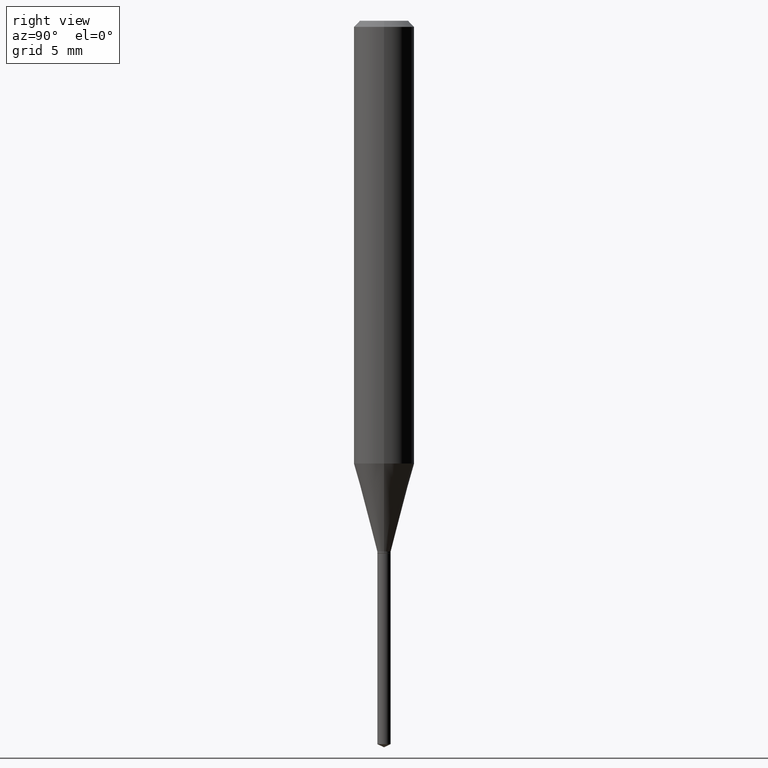
[diagram: clean part render]
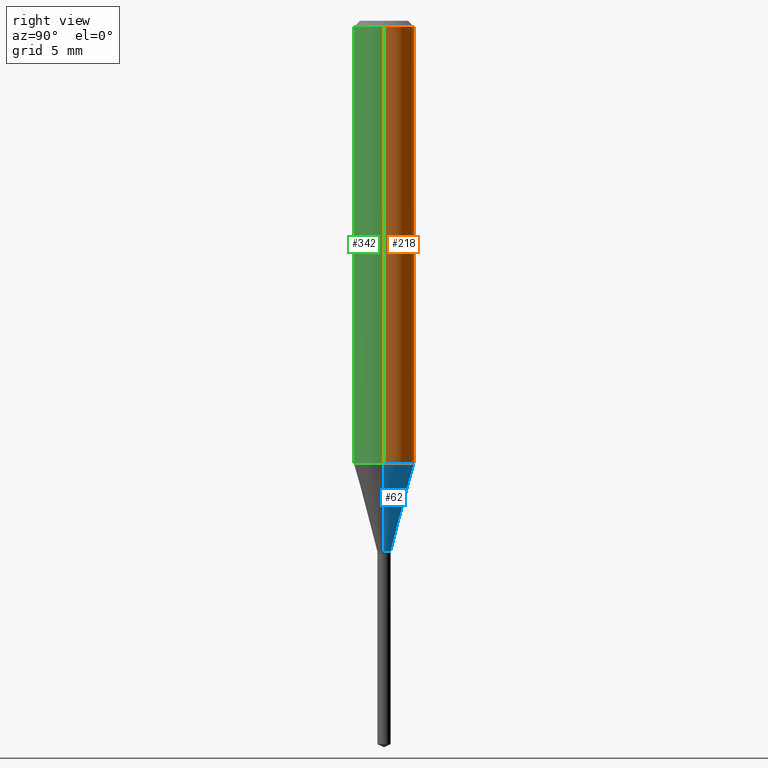
[diagram: same view with three faces highlighted in distinct colors, each labeled with its STEP entity id]
A machine part, right view with three faces highlighted in distinct colors.
Their STEP definitions:

[orange] entity #218 — the highlighted cylindrical surface (edge-blend (fillet) strip) has radius 1.5875 mm, axis along (-0, 0, 1).
#31 = VERTEX_POINT ( 'NONE', #334 ) ;
#35 = CIRCLE ( 'NONE', #430, 0.06250000000000000000 ) ;
#36 = CARTESIAN_POINT ( 'NONE',  ( -0.06250000000000005551, 4.440892098500630106E-16, -3.074334431409318916E-30 ) ) ;
#43 = DIRECTION ( 'NONE',  ( -2.445468806185136877E-29, 3.491481338843145188E-15, 1.000000000000000000 ) ) ;
#60 = VERTEX_POINT ( 'NONE', #359 ) ;
#68 = ORIENTED_EDGE ( 'NONE', *, *, #444, .T. ) ;
#77 = ORIENTED_EDGE ( 'NONE', *, *, #122, .F. ) ;
#89 = ORIENTED_EDGE ( 'NONE', *, *, #327, .F. ) ;
#90 = CARTESIAN_POINT ( 'NONE',  ( 0.06250000000000005551, -4.364351673553921131E-16, 3.047610484872463023E-30 ) ) ;
#113 = CARTESIAN_POINT ( 'NONE',  ( 3.056836007731440977E-31, -4.364351673553961068E-17, -0.01250000000000008223 ) ) ;
#115 = CARTESIAN_POINT ( 'NONE',  ( 0.000000000000000000, 0.000000000000000000, 0.000000000000000000 ) ) ;
#122 = EDGE_CURVE ( 'NONE', #31, #60, #35, .T. ) ;
#123 = EDGE_CURVE ( 'NONE', #387, #60, #156, .T. ) ;
#137 = VECTOR ( 'NONE', #43, 39.37007874015748143 ) ;
#141 = CARTESIAN_POINT ( 'NONE',  ( 2.235523171030814691E-29, -3.191734613201455764E-15, -0.9141491256713957236 ) ) ;
#149 = VERTEX_POINT ( 'NONE', #346 ) ;
#156 = LINE ( 'NONE', #36, #137 ) ;
#218 = ADVANCED_FACE ( 'NONE', ( #463 ), #303, .T. ) ;
#271 = DIRECTION ( 'NONE',  ( 1.000000000000000000, -6.982962677686267499E-15, 4.876176775795936353E-29 ) ) ;
#303 = CYLINDRICAL_SURFACE ( 'NONE', #304, 0.06250000000000005551 ) ;
#304 = AXIS2_PLACEMENT_3D ( 'NONE', #115, #459, #271 ) ;
#313 = DIRECTION ( 'NONE',  ( 1.000000000000000000, -6.982962677686266711E-15, 0.000000000000000000 ) ) ;
#327 = EDGE_CURVE ( 'NONE', #149, #31, #431, .T. ) ;
#328 = CIRCLE ( 'NONE', #438, 0.06250000000000012490 ) ;
#333 = CARTESIAN_POINT ( 'NONE',  ( -0.06250000000000012490, -2.747645403351391964E-15, -0.9141491256713957236 ) ) ;
#334 = CARTESIAN_POINT ( 'NONE',  ( 0.06250000000000000000, -4.800786840909312308E-16, -0.01250000000000008223 ) ) ;
#336 = DIRECTION ( 'NONE',  ( 1.000000000000000000, -6.982962677686264344E-15, 0.000000000000000000 ) ) ;
#343 = DIRECTION ( 'NONE',  ( -2.445468806185136597E-29, 3.491481338843145583E-15, 1.000000000000000000 ) ) ;
#346 = CARTESIAN_POINT ( 'NONE',  ( 0.06250000000000012490, -3.628169780556848222E-15, -0.9141491256713957236 ) ) ;
#359 = CARTESIAN_POINT ( 'NONE',  ( -0.06250000000000000000, -1.173599855118433863E-15, -0.01250000000000008223 ) ) ;
#368 = VECTOR ( 'NONE', #433, 39.37007874015748143 ) ;
#375 = EDGE_LOOP ( 'NONE', ( #68, #379, #77, #89 ) ) ;
#379 = ORIENTED_EDGE ( 'NONE', *, *, #123, .T. ) ;
#387 = VERTEX_POINT ( 'NONE', #333 ) ;
#430 = AXIS2_PLACEMENT_3D ( 'NONE', #113, #343, #313 ) ;
#431 = LINE ( 'NONE', #90, #368 ) ;
#433 = DIRECTION ( 'NONE',  ( -2.445468806185136877E-29, 3.491481338843145188E-15, 1.000000000000000000 ) ) ;
#438 = AXIS2_PLACEMENT_3D ( 'NONE', #141, #453, #336 ) ;
#444 = EDGE_CURVE ( 'NONE', #149, #387, #328, .T. ) ;
#453 = DIRECTION ( 'NONE',  ( -2.445468806185136597E-29, 3.491481338843145583E-15, 1.000000000000000000 ) ) ;
#459 = DIRECTION ( 'NONE',  ( -2.445468806185136597E-29, 3.491481338843145583E-15, 1.000000000000000000 ) ) ;
#463 = FACE_OUTER_BOUND ( 'NONE', #375, .T. ) ;

[blue] entity #62 — the highlighted conical surface has half-angle 15 deg.
#8 = LINE ( 'NONE', #388, #26 ) ;
#12 = CONICAL_SURFACE ( 'NONE', #213, 0.01379999999999999977, 0.2617993877991499074 ) ;
#25 = ORIENTED_EDGE ( 'NONE', *, *, #279, .T. ) ;
#26 = VECTOR ( 'NONE', #474, 39.37007874015748854 ) ;
#32 = DIRECTION ( 'NONE',  ( 0.2588190451025211836, 1.565188264969622559E-15, 0.9659258262890679791 ) ) ;
#34 = EDGE_LOOP ( 'NONE', ( #158, #25, #98, #189 ) ) ;
#39 = DIRECTION ( 'NONE',  ( 1.000000000000000000, -6.982962677686269866E-15, 0.000000000000000000 ) ) ;
#50 = CIRCLE ( 'NONE', #190, 0.01379999999999999977 ) ;
#62 = ADVANCED_FACE ( 'NONE', ( #398 ), #12, .T. ) ;
#98 = ORIENTED_EDGE ( 'NONE', *, *, #444, .F. ) ;
#132 = CARTESIAN_POINT ( 'NONE',  ( 2.679989264698291414E-29, -3.826314399238203772E-15, -1.095900000000000096 ) ) ;
#140 = VERTEX_POINT ( 'NONE', #490 ) ;
#141 = CARTESIAN_POINT ( 'NONE',  ( 2.235523171030814691E-29, -3.191734613201455764E-15, -0.9141491256713957236 ) ) ;
#149 = VERTEX_POINT ( 'NONE', #346 ) ;
#158 = ORIENTED_EDGE ( 'NONE', *, *, #207, .T. ) ;
#184 = CARTESIAN_POINT ( 'NONE',  ( 0.01379999999999999977, -3.922679284190274713E-15, -1.095900000000000096 ) ) ;
#189 = ORIENTED_EDGE ( 'NONE', *, *, #362, .F. ) ;
#190 = AXIS2_PLACEMENT_3D ( 'NONE', #349, #380, #39 ) ;
#194 = VECTOR ( 'NONE', #32, 39.37007874015748854 ) ;
#207 = EDGE_CURVE ( 'NONE', #140, #410, #50, .T. ) ;
#213 = AXIS2_PLACEMENT_3D ( 'NONE', #132, #350, #231 ) ;
#215 = CARTESIAN_POINT ( 'NONE',  ( -0.01379999999999999977, -3.734544168113227903E-15, -1.095900000000000096 ) ) ;
#231 = DIRECTION ( 'NONE',  ( 1.000000000000000000, -6.982962677686269866E-15, 0.000000000000000000 ) ) ;
#279 = EDGE_CURVE ( 'NONE', #410, #387, #8, .T. ) ;
#328 = CIRCLE ( 'NONE', #438, 0.06250000000000012490 ) ;
#333 = CARTESIAN_POINT ( 'NONE',  ( -0.06250000000000012490, -2.747645403351391964E-15, -0.9141491256713957236 ) ) ;
#336 = DIRECTION ( 'NONE',  ( 1.000000000000000000, -6.982962677686264344E-15, 0.000000000000000000 ) ) ;
#346 = CARTESIAN_POINT ( 'NONE',  ( 0.06250000000000012490, -3.628169780556848222E-15, -0.9141491256713957236 ) ) ;
#349 = CARTESIAN_POINT ( 'NONE',  ( 2.679989264698291414E-29, -3.826314399238203772E-15, -1.095900000000000096 ) ) ;
#350 = DIRECTION ( 'NONE',  ( -2.445468806185136597E-29, 3.491481338843145583E-15, 1.000000000000000000 ) ) ;
#362 = EDGE_CURVE ( 'NONE', #140, #149, #442, .T. ) ;
#380 = DIRECTION ( 'NONE',  ( -2.445468806185136597E-29, 3.491481338843145583E-15, 1.000000000000000000 ) ) ;
#387 = VERTEX_POINT ( 'NONE', #333 ) ;
#388 = CARTESIAN_POINT ( 'NONE',  ( -0.01379999999999999977, -3.728259501703309702E-15, -1.095900000000000096 ) ) ;
#398 = FACE_OUTER_BOUND ( 'NONE', #34, .T. ) ;
#410 = VERTEX_POINT ( 'NONE', #215 ) ;
#438 = AXIS2_PLACEMENT_3D ( 'NONE', #141, #453, #336 ) ;
#442 = LINE ( 'NONE', #184, #194 ) ;
#444 = EDGE_CURVE ( 'NONE', #149, #387, #328, .T. ) ;
#453 = DIRECTION ( 'NONE',  ( -2.445468806185136597E-29, 3.491481338843145583E-15, 1.000000000000000000 ) ) ;
#474 = DIRECTION ( 'NONE',  ( -0.2588190451025211836, 5.211531920934547886E-15, 0.9659258262890679791 ) ) ;
#490 = CARTESIAN_POINT ( 'NONE',  ( 0.01379999999999999977, -3.922679284190274713E-15, -1.095900000000000096 ) ) ;

[green] entity #342 — the highlighted cylindrical surface (edge-blend (fillet) strip) has radius 1.5875 mm, axis along (-0, 0, 1).
#29 = DIRECTION ( 'NONE',  ( 1.000000000000000000, -6.982962677686266711E-15, 0.000000000000000000 ) ) ;
#31 = VERTEX_POINT ( 'NONE', #334 ) ;
#36 = CARTESIAN_POINT ( 'NONE',  ( -0.06250000000000005551, 4.440892098500630106E-16, -3.074334431409318916E-30 ) ) ;
#43 = DIRECTION ( 'NONE',  ( -2.445468806185136877E-29, 3.491481338843145188E-15, 1.000000000000000000 ) ) ;
#58 = EDGE_CURVE ( 'NONE', #387, #149, #401, .T. ) ;
#60 = VERTEX_POINT ( 'NONE', #359 ) ;
#67 = AXIS2_PLACEMENT_3D ( 'NONE', #260, #406, #29 ) ;
#90 = CARTESIAN_POINT ( 'NONE',  ( 0.06250000000000005551, -4.364351673553921131E-16, 3.047610484872463023E-30 ) ) ;
#92 = FACE_OUTER_BOUND ( 'NONE', #196, .T. ) ;
#94 = ORIENTED_EDGE ( 'NONE', *, *, #123, .F. ) ;
#103 = DIRECTION ( 'NONE',  ( 1.000000000000000000, -6.982962677686264344E-15, 0.000000000000000000 ) ) ;
#114 = ORIENTED_EDGE ( 'NONE', *, *, #327, .T. ) ;
#123 = EDGE_CURVE ( 'NONE', #387, #60, #156, .T. ) ;
#137 = VECTOR ( 'NONE', #43, 39.37007874015748143 ) ;
#149 = VERTEX_POINT ( 'NONE', #346 ) ;
#156 = LINE ( 'NONE', #36, #137 ) ;
#196 = EDGE_LOOP ( 'NONE', ( #94, #199, #114, #292 ) ) ;
#199 = ORIENTED_EDGE ( 'NONE', *, *, #58, .T. ) ;
#260 = CARTESIAN_POINT ( 'NONE',  ( 3.056836007731440977E-31, -4.364351673553961068E-17, -0.01250000000000008223 ) ) ;
#278 = AXIS2_PLACEMENT_3D ( 'NONE', #367, #488, #289 ) ;
#289 = DIRECTION ( 'NONE',  ( 1.000000000000000000, -6.982962677686267499E-15, 4.876176775795936353E-29 ) ) ;
#292 = ORIENTED_EDGE ( 'NONE', *, *, #344, .F. ) ;
#322 = CIRCLE ( 'NONE', #67, 0.06250000000000000000 ) ;
#327 = EDGE_CURVE ( 'NONE', #149, #31, #431, .T. ) ;
#333 = CARTESIAN_POINT ( 'NONE',  ( -0.06250000000000012490, -2.747645403351391964E-15, -0.9141491256713957236 ) ) ;
#334 = CARTESIAN_POINT ( 'NONE',  ( 0.06250000000000000000, -4.800786840909312308E-16, -0.01250000000000008223 ) ) ;
#338 = AXIS2_PLACEMENT_3D ( 'NONE', #413, #451, #103 ) ;
#342 = ADVANCED_FACE ( 'NONE', ( #92 ), #399, .T. ) ;
#344 = EDGE_CURVE ( 'NONE', #60, #31, #322, .T. ) ;
#346 = CARTESIAN_POINT ( 'NONE',  ( 0.06250000000000012490, -3.628169780556848222E-15, -0.9141491256713957236 ) ) ;
#359 = CARTESIAN_POINT ( 'NONE',  ( -0.06250000000000000000, -1.173599855118433863E-15, -0.01250000000000008223 ) ) ;
#367 = CARTESIAN_POINT ( 'NONE',  ( 0.000000000000000000, 0.000000000000000000, 0.000000000000000000 ) ) ;
#368 = VECTOR ( 'NONE', #433, 39.37007874015748143 ) ;
#387 = VERTEX_POINT ( 'NONE', #333 ) ;
#399 = CYLINDRICAL_SURFACE ( 'NONE', #278, 0.06250000000000005551 ) ;
#401 = CIRCLE ( 'NONE', #338, 0.06250000000000012490 ) ;
#406 = DIRECTION ( 'NONE',  ( -2.445468806185136597E-29, 3.491481338843145583E-15, 1.000000000000000000 ) ) ;
#413 = CARTESIAN_POINT ( 'NONE',  ( 2.235523171030814691E-29, -3.191734613201455764E-15, -0.9141491256713957236 ) ) ;
#431 = LINE ( 'NONE', #90, #368 ) ;
#433 = DIRECTION ( 'NONE',  ( -2.445468806185136877E-29, 3.491481338843145188E-15, 1.000000000000000000 ) ) ;
#451 = DIRECTION ( 'NONE',  ( -2.445468806185136597E-29, 3.491481338843145583E-15, 1.000000000000000000 ) ) ;
#488 = DIRECTION ( 'NONE',  ( -2.445468806185136597E-29, 3.491481338843145583E-15, 1.000000000000000000 ) ) ;